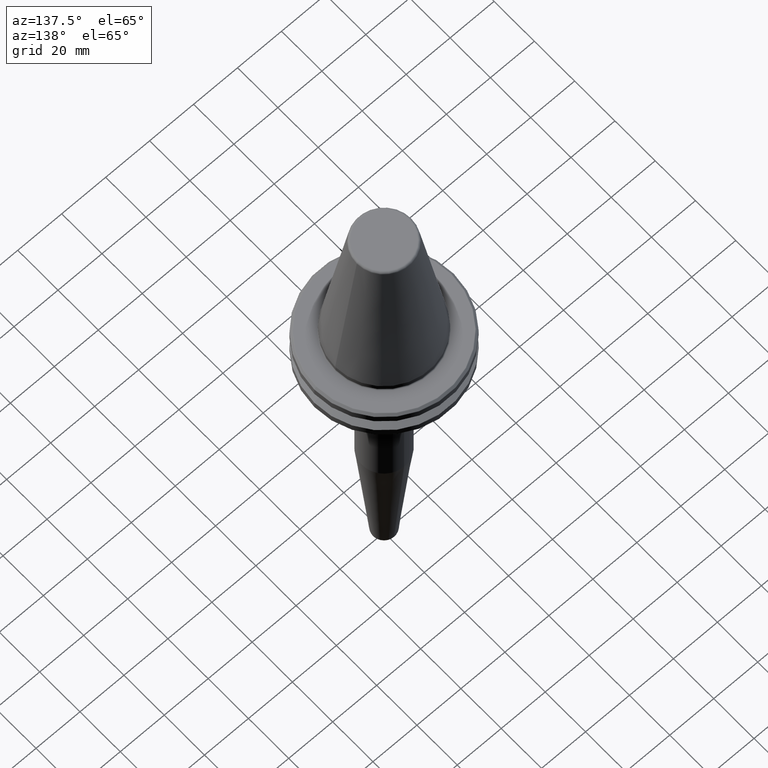
[diagram: clean part render]
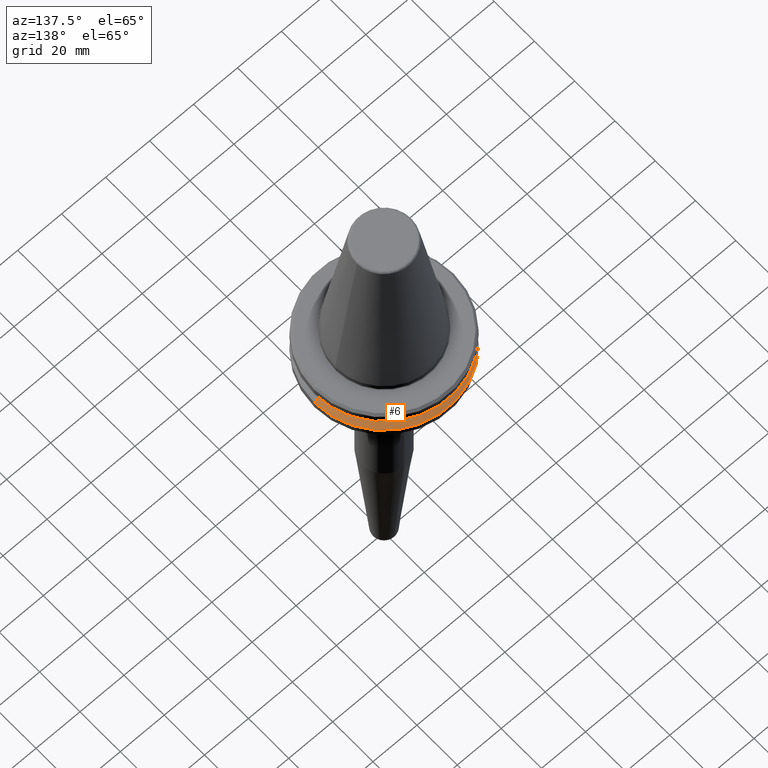
[diagram: same view with one face highlighted and labeled with its STEP entity id]
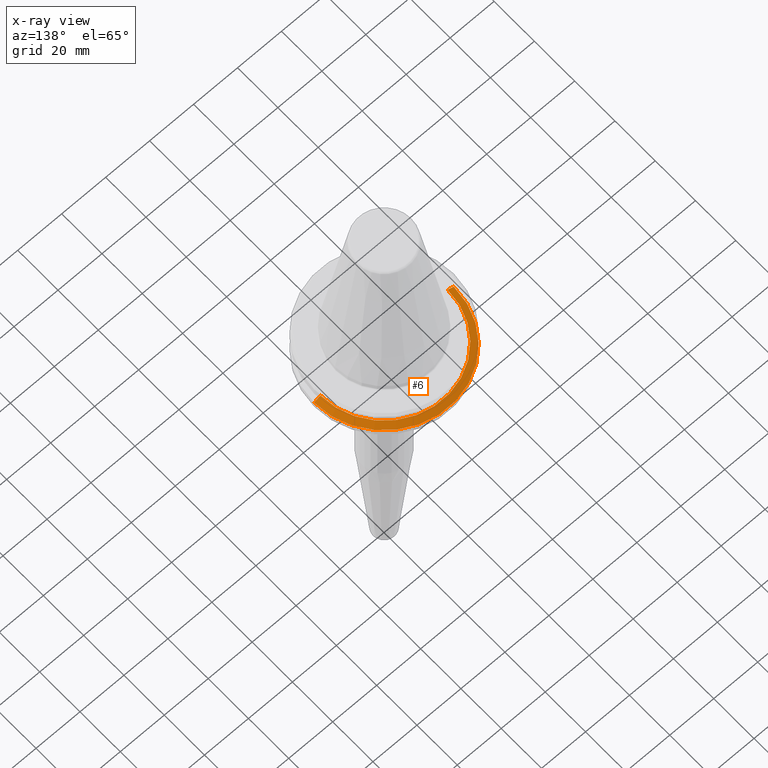
[diagram: x-ray of the same camera — body ghosted, the highlighted face saturated]
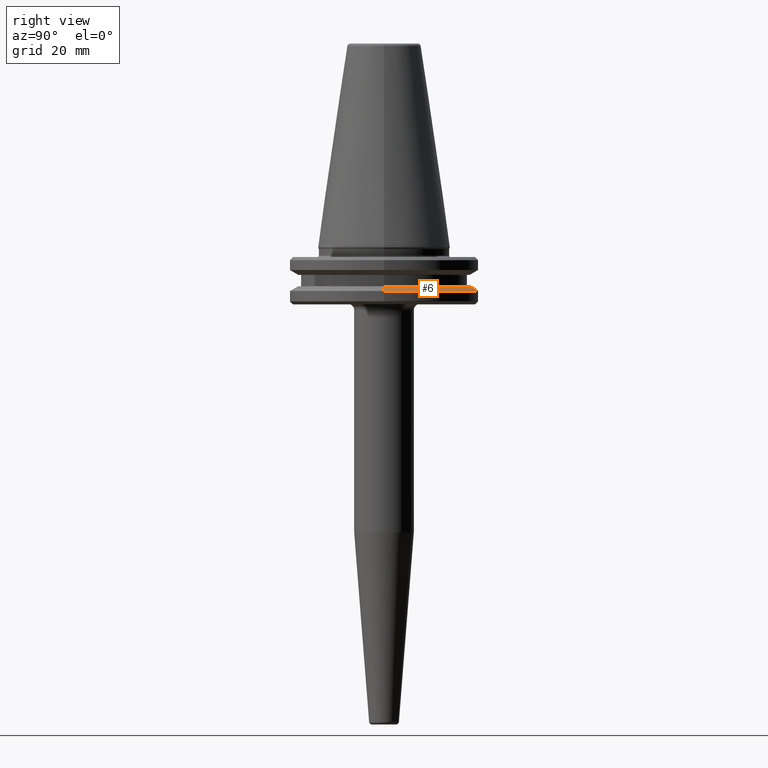
[diagram: same view with one face highlighted and labeled with its STEP entity id]
A machine part, auxiliary view. The second image highlights one B-rep face of the part: STEP entity #6.
The next image is the same camera in x-ray: the body ghosted, the highlighted face saturated — about 0% of this face is hidden behind the body in this view.
A second angle (right view) of the same face is appended — the face is thin or edge-on in the first view.
In plain terms, the highlighted conical surface has half-angle 60 deg.
Its self-contained STEP definition (entity closure, byte-faithful):
#6 = ADVANCED_FACE ( 'NONE', ( #453 ), #168, .T. ) ;
#22 = ORIENTED_EDGE ( 'NONE', *, *, #759, .F. ) ;
#69 = LINE ( 'NONE', #482, #1055 ) ;
#89 = CARTESIAN_POINT ( 'NONE',  ( 0.0000000000000000000, 0.0000000000000000000, -14.62183664205671200 ) ) ;
#93 = DIRECTION ( 'NONE',  ( -0.8660254037844420400, 0.0000000000000000000, -0.4999999999999943900 ) ) ;
#97 = VERTEX_POINT ( 'NONE', #347 ) ;
#113 = DIRECTION ( 'NONE',  ( -0.0000000000000000000, -0.0000000000000000000, 1.000000000000000000 ) ) ;
#147 = CARTESIAN_POINT ( 'NONE',  ( 0.0000000000000000000, 0.0000000000000000000, -13.00000000000001100 ) ) ;
#168 = CONICAL_SURFACE ( 'NONE', #461, 28.94089653438085100, 1.047197551196604300 ) ;
#175 = AXIS2_PLACEMENT_3D ( 'NONE', #89, #760, #188 ) ;
#188 = DIRECTION ( 'NONE',  ( 1.000000000000000000, 0.0000000000000000000, 0.0000000000000000000 ) ) ;
#192 = CIRCLE ( 'NONE', #1181, 28.94089653438085100 ) ;
#256 = EDGE_CURVE ( 'NONE', #533, #1230, #192, .T. ) ;
#305 = CARTESIAN_POINT ( 'NONE',  ( 0.0000000000000000000, 0.0000000000000000000, -13.00000000000001100 ) ) ;
#347 = CARTESIAN_POINT ( 'NONE',  ( -31.75000000000000000, 3.888253587292846500E-015, -14.62183664205671200 ) ) ;
#357 = CIRCLE ( 'NONE', #175, 31.75000000000000000 ) ;
#371 = CARTESIAN_POINT ( 'NONE',  ( 31.75000000000000000, 0.0000000000000000000, -14.62183664205671200 ) ) ;
#379 = ORIENTED_EDGE ( 'NONE', *, *, #834, .T. ) ;
#453 = FACE_OUTER_BOUND ( 'NONE', #1117, .T. ) ;
#461 = AXIS2_PLACEMENT_3D ( 'NONE', #147, #1205, #808 ) ;
#482 = CARTESIAN_POINT ( 'NONE',  ( -28.94089653438085100, 0.0000000000000000000, -13.00000000000001100 ) ) ;
#524 = LINE ( 'NONE', #1051, #776 ) ;
#533 = VERTEX_POINT ( 'NONE', #534 ) ;
#534 = CARTESIAN_POINT ( 'NONE',  ( 28.94089653438085100, 3.716245608910634800E-015, -13.00000000000001100 ) ) ;
#700 = VERTEX_POINT ( 'NONE', #371 ) ;
#717 = CARTESIAN_POINT ( 'NONE',  ( -28.94089653438085100, 0.0000000000000000000, -13.00000000000001100 ) ) ;
#731 = EDGE_CURVE ( 'NONE', #700, #97, #357, .T. ) ;
#759 = EDGE_CURVE ( 'NONE', #1230, #97, #69, .T. ) ;
#760 = DIRECTION ( 'NONE',  ( -0.0000000000000000000, -0.0000000000000000000, 1.000000000000000000 ) ) ;
#776 = VECTOR ( 'NONE', #956, 999.9999999999998900 ) ;
#808 = DIRECTION ( 'NONE',  ( -1.000000000000000000, 0.0000000000000000000, 0.0000000000000000000 ) ) ;
#834 = EDGE_CURVE ( 'NONE', #533, #700, #524, .T. ) ;
#893 = ORIENTED_EDGE ( 'NONE', *, *, #256, .F. ) ;
#956 = DIRECTION ( 'NONE',  ( 0.8660254037844420400, 1.060575238724911000E-016, -0.4999999999999943900 ) ) ;
#1049 = ORIENTED_EDGE ( 'NONE', *, *, #731, .T. ) ;
#1051 = CARTESIAN_POINT ( 'NONE',  ( 28.94089653438085100, 3.544237630528423800E-015, -13.00000000000001100 ) ) ;
#1055 = VECTOR ( 'NONE', #93, 999.9999999999998900 ) ;
#1117 = EDGE_LOOP ( 'NONE', ( #893, #379, #1049, #22 ) ) ;
#1166 = DIRECTION ( 'NONE',  ( 1.000000000000000000, 0.0000000000000000000, 0.0000000000000000000 ) ) ;
#1181 = AXIS2_PLACEMENT_3D ( 'NONE', #305, #113, #1166 ) ;
#1205 = DIRECTION ( 'NONE',  ( 0.0000000000000000000, 0.0000000000000000000, -1.000000000000000000 ) ) ;
#1230 = VERTEX_POINT ( 'NONE', #717 ) ;